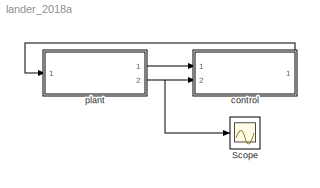
MODEL lander_2018a
KIND model
BLOCK [Scope] Scope
  Floating = off
  NumInputPorts = 1
  Ports = [1]
  SID = 45
  ScopeSpecificationString = Simulink.scopes.TimeScopeBlockCfg('CurrentConfiguration', extmgr.ConfigurationSet(extmgr.Configuration('Core','General UI',true),extmgr.Configuration('Core','Source UI',true),extmgr.Configuration('Sources','WiredSimulink',true,'DataLoggingSaveFormat','StructureWithTime','DataLoggingLimitDataPoints',true,'DataLoggingDecimation','1','DataLoggingDecimateData',true),extmgr.Configuration('Visuals','Tim...<+1737ch>
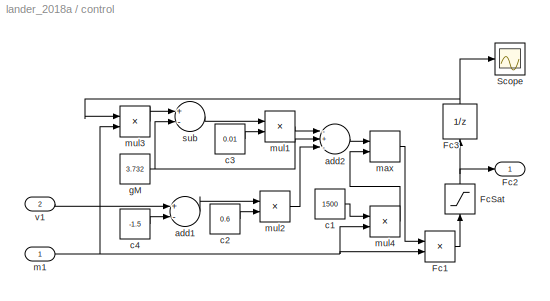
BLOCK [SubSystem] control
  Ports = [2, 1]
  RequestExecContextInheritance = off
  SID = 24
BLOCK [Product] control/Fc1
  InputSameDT = off
  Inputs = **
  OutDataTypeStr = Inherit: Inherit via internal rule
  Ports = [2, 1]
  RndMeth = Floor
  SID = 43
  SampleTime = 0.128
  SaturateOnIntegerOverflow = off
BLOCK [Outport] control/Fc2
  IconDisplay = Port number
  SID = 40
  VectorParamsAs1DForOutWhenUnconnected = on
BLOCK [UnitDelay] control/Fc3
  InitialCondition = 2835
  InputProcessing = Elements as channels (sample based)
  SID = 44
  SampleTime = 0.128
BLOCK [Saturate] control/FcSat
  InputPortMap = u0
  LowerLimit = 1500
  Ports = [1, 1]
  SID = 54
  SampleTime = 0.128
  UpperLimit = 5000
BLOCK [Scope] control/Scope
  Floating = off
  NumInputPorts = 1
  Ports = [1]
  SID = 67
  ScopeSpecificationString = Simulink.scopes.TimeScopeBlockCfg('CurrentConfiguration', extmgr.ConfigurationSet(extmgr.Configuration('Core','General UI',true),extmgr.Configuration('Core','Source UI',true),extmgr.Configuration('Sources','WiredSimulink',true,'DataLoggingVariableName','ScopeData2'),extmgr.Configuration('Visuals','Time Domain',true,'SerializedDisplays',{struct('MinYLimReal','2802.56567','MaxYLimReal','2838.60381',...<+1384ch>
BLOCK [Sum] control/add1
  InputSameDT = off
  Inputs = +-
  OutDataTypeStr = Inherit: Inherit via internal rule
  Ports = [2, 1]
  SID = 28
  SampleTime = 0.128
  SaturateOnIntegerOverflow = off
BLOCK [Sum] control/add2
  InputSameDT = off
  Inputs = -+-
  OutDataTypeStr = Inherit: Inherit via internal rule
  Ports = [3, 1]
  SID = 29
  SampleTime = 0.128
  SaturateOnIntegerOverflow = off
BLOCK [Constant] control/c1
  SID = 55
  Value = 1500
BLOCK [Constant] control/c2
  SID = 30
  Value = 0.6
BLOCK [Constant] control/c3
  SID = 31
  Value = 0.01
BLOCK [Constant] control/c4
  SID = 32
  Value = -1.5
BLOCK [Constant] control/gM
  SID = 35
  Value = 3.732
BLOCK [Inport] control/m1
  IconDisplay = Port number
  SID = 27
BLOCK [MinMax] control/max
  Function = max
  InputSameDT = off
  Inputs = 2
  Ports = [2, 1]
  SID = 53
  SampleTime = 0.128
  SaturateOnIntegerOverflow = off
BLOCK [Product] control/mul1
  InputSameDT = off
  Inputs = **
  OutDataTypeStr = Inherit: Inherit via internal rule
  Ports = [2, 1]
  RndMeth = Floor
  SID = 37
  SampleTime = 0.128
  SaturateOnIntegerOverflow = off
BLOCK [Product] control/mul2
  InputSameDT = off
  Inputs = **
  OutDataTypeStr = Inherit: Inherit via internal rule
  Ports = [2, 1]
  RndMeth = Floor
  SID = 38
  SampleTime = 0.128
  SaturateOnIntegerOverflow = off
BLOCK [Product] control/mul3
  InputSameDT = off
  Inputs = */
  OutDataTypeStr = Inherit: Inherit via internal rule
  Ports = [2, 1]
  RndMeth = Floor
  SID = 41
  SampleTime = 0.128
  SaturateOnIntegerOverflow = off
BLOCK [Product] control/mul4
  InputSameDT = off
  Inputs = */
  OutDataTypeStr = Inherit: Inherit via internal rule
  Ports = [2, 1]
  RndMeth = Floor
  SID = 56
  SampleTime = 0.128
  SaturateOnIntegerOverflow = off
BLOCK [Sum] control/sub
  InputSameDT = off
  Inputs = +-
  OutDataTypeStr = Inherit: Inherit via internal rule
  Ports = [2, 1]
  SID = 39
  SampleTime = 0.128
  SaturateOnIntegerOverflow = off
BLOCK [Inport] control/v1
  IconDisplay = Port number
  Port = 2
  SID = 26
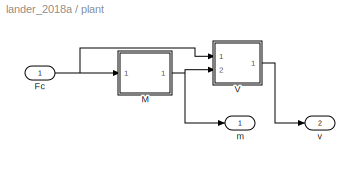
BLOCK [SubSystem] plant
  Ports = [1, 2]
  RequestExecContextInheritance = off
  SID = 1
BLOCK [Inport] plant/Fc
  IconDisplay = Port number
  SID = 2
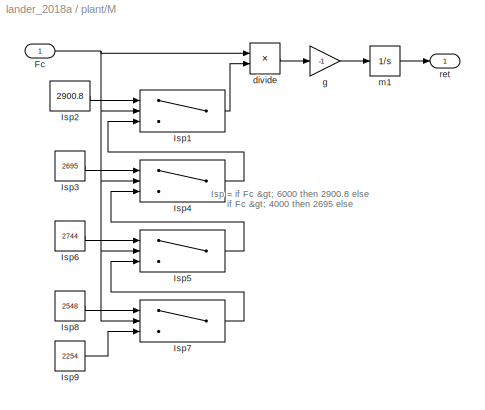
BLOCK [SubSystem] plant/M
  Ports = [1, 1]
  RequestExecContextInheritance = off
  SID = 16
BLOCK [Inport] plant/M/Fc
  IconDisplay = Port number
  SID = 17
BLOCK [Switch] plant/M/Isp1
  Criteria = u2 > Threshold
  InputSameDT = off
  SID = 49
  SampleTime = 0
  SaturateOnIntegerOverflow = off
  Threshold = 6000
BLOCK [Constant] plant/M/Isp2
  SID = 21
  Value = 2900.8
BLOCK [Constant] plant/M/Isp3
  SID = 48
  Value = 2695
BLOCK [Switch] plant/M/Isp4
  Criteria = u2 > Threshold
  InputSameDT = off
  SID = 58
  SampleTime = 0
  SaturateOnIntegerOverflow = off
  Threshold = 4000
BLOCK [Switch] plant/M/Isp5
  Criteria = u2 > Threshold
  InputSameDT = off
  SID = 59
  SampleTime = 0
  SaturateOnIntegerOverflow = off
  Threshold = 3000
BLOCK [Constant] plant/M/Isp6
  SID = 60
  Value = 2744
BLOCK [Switch] plant/M/Isp7
  Criteria = u2 > Threshold
  InputSameDT = off
  SID = 61
  SampleTime = 0
  SaturateOnIntegerOverflow = off
  Threshold = 2000
BLOCK [Constant] plant/M/Isp8
  SID = 62
  Value = 2548
BLOCK [Constant] plant/M/Isp9
  SID = 63
  Value = 2254
BLOCK [Product] plant/M/divide
  InputSameDT = off
  Inputs = */
  OutDataTypeStr = Inherit: Inherit via internal rule
  Ports = [2, 1]
  RndMeth = Floor
  SID = 19
  SampleTime = 0
  SaturateOnIntegerOverflow = off
BLOCK [Gain] plant/M/g
  Gain = -1
  OutDataTypeStr = Inherit: Inherit via internal rule
  ParamDataTypeStr = Inherit: Inherit via internal rule
  SID = 20
  SampleTime = 0
  SaturateOnIntegerOverflow = off
BLOCK [Integrator] plant/M/m1
  InitialCondition = 759.5
  Ports = [1, 1]
  SID = 8
BLOCK [Outport] plant/M/ret
  IconDisplay = Port number
  SID = 18
  VectorParamsAs1DForOutWhenUnconnected = on
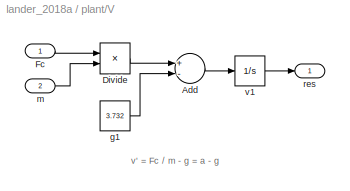
BLOCK [SubSystem] plant/V
  Ports = [2, 1]
  RequestExecContextInheritance = off
  SID = 12
BLOCK [Sum] plant/V/Add
  InputSameDT = off
  Inputs = +-
  OutDataTypeStr = Inherit: Inherit via internal rule
  Ports = [2, 1]
  SID = 10
  SampleTime = 0
  SaturateOnIntegerOverflow = off
BLOCK [Product] plant/V/Divide
  InputSameDT = off
  Inputs = */
  OutDataTypeStr = Inherit: Inherit via internal rule
  Ports = [2, 1]
  RndMeth = Floor
  SID = 9
  SampleTime = 0
  SaturateOnIntegerOverflow = off
BLOCK [Inport] plant/V/Fc
  IconDisplay = Port number
  SID = 13
BLOCK [Constant] plant/V/g1
  SID = 11
  Value = 3.732
BLOCK [Inport] plant/V/m
  IconDisplay = Port number
  Port = 2
  SID = 15
BLOCK [Outport] plant/V/res
  IconDisplay = Port number
  SID = 14
  VectorParamsAs1DForOutWhenUnconnected = on
BLOCK [Integrator] plant/V/v1
  InitialCondition = -1.5
  Ports = [1, 1]
  SID = 7
BLOCK [Outport] plant/m
  IconDisplay = Port number
  SID = 3
  VectorParamsAs1DForOutWhenUnconnected = on
BLOCK [Outport] plant/v
  IconDisplay = Port number
  Port = 2
  SID = 22
  VectorParamsAs1DForOutWhenUnconnected = on
ANNOTATION plant/M: \n \n Isp = if Fc > 6000 then 2900.8 else \n if Fc > 4000 then 2695 else \n if Fc > 3000 then 2744 else \n if Fc > 2000 then 2548 else 2254 \n \n m' = - Fc / isp = - m * a / Isp
ANNOTATION plant/V: \n \n v' = Fc / m - g = a - g
LINE control/Fc1:1 -> control/FcSat:1
NET control/Fc3:1 -> control/Scope:1, control/mul3:1
NET control/FcSat:1 -> control/Fc2:1, control/Fc3:1
LINE control/add1:1 -> control/mul2:1
LINE control/add2:1 -> control/max:1
LINE control/c1:1 -> control/mul4:1
LINE control/c2:1 -> control/mul2:2
LINE control/c3:1 -> control/mul1:2
LINE control/c4:1 -> control/add1:2
NET control/gM:1 -> control/add2:2, control/sub:2
NET control/m1:1 -> control/Fc1:2, control/mul3:2, control/mul4:2
LINE control/max:1 -> control/Fc1:1
LINE control/mul1:1 -> control/add2:1
LINE control/mul2:1 -> control/add2:3
LINE control/mul3:1 -> control/sub:1
LINE control/mul4:1 -> control/max:2
LINE control/sub:1 -> control/mul1:1
LINE control/v1:1 -> control/add1:1
LINE control:1 -> plant:1
NET plant/Fc:1 -> plant/M:1, plant/V:1
NET plant/M/Fc:1 -> plant/M/Isp1:2, plant/M/Isp4:2, plant/M/Isp5:2, plant/M/Isp7:2, plant/M/divide:1
LINE plant/M/Isp1:1 -> plant/M/divide:2
LINE plant/M/Isp2:1 -> plant/M/Isp1:1
LINE plant/M/Isp3:1 -> plant/M/Isp4:1
LINE plant/M/Isp4:1 -> plant/M/Isp1:3
LINE plant/M/Isp5:1 -> plant/M/Isp4:3
LINE plant/M/Isp6:1 -> plant/M/Isp5:1
LINE plant/M/Isp7:1 -> plant/M/Isp5:3
LINE plant/M/Isp8:1 -> plant/M/Isp7:1
LINE plant/M/Isp9:1 -> plant/M/Isp7:3
LINE plant/M/divide:1 -> plant/M/g:1
LINE plant/M/g:1 -> plant/M/m1:1
LINE plant/M/m1:1 -> plant/M/ret:1
NET plant/M:1 -> plant/V:2, plant/m:1
LINE plant/V/Add:1 -> plant/V/v1:1
LINE plant/V/Divide:1 -> plant/V/Add:1
LINE plant/V/Fc:1 -> plant/V/Divide:1
LINE plant/V/g1:1 -> plant/V/Add:2
LINE plant/V/m:1 -> plant/V/Divide:2
LINE plant/V/v1:1 -> plant/V/res:1
LINE plant/V:1 -> plant/v:1
LINE plant:1 -> control:1
NET plant:2 -> Scope:1, control:2
note: NET lines group one-source signal fan-out (src -> all destinations, sorted); 1:1 wires keep LINE
